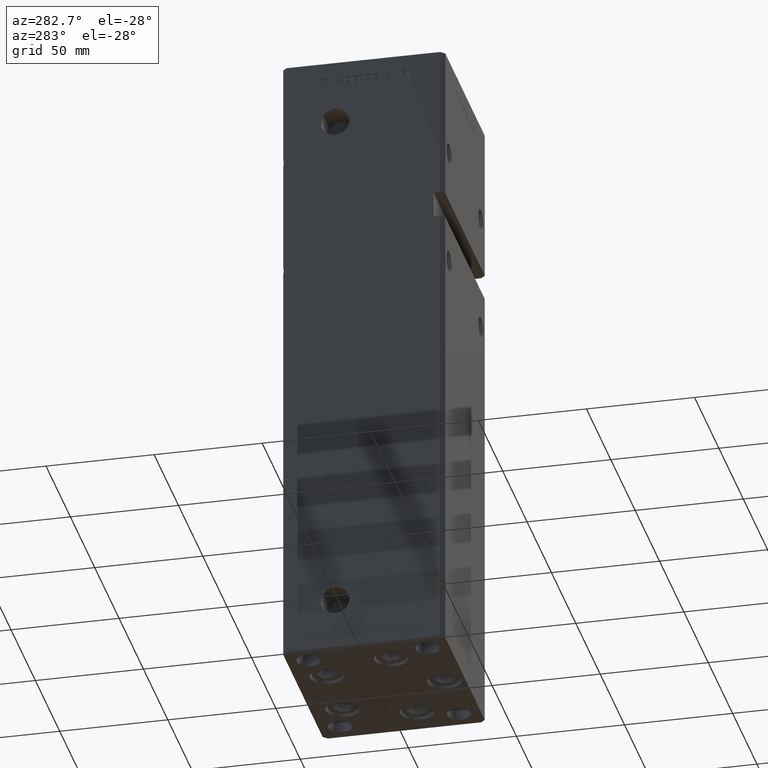
[diagram: clean part render]
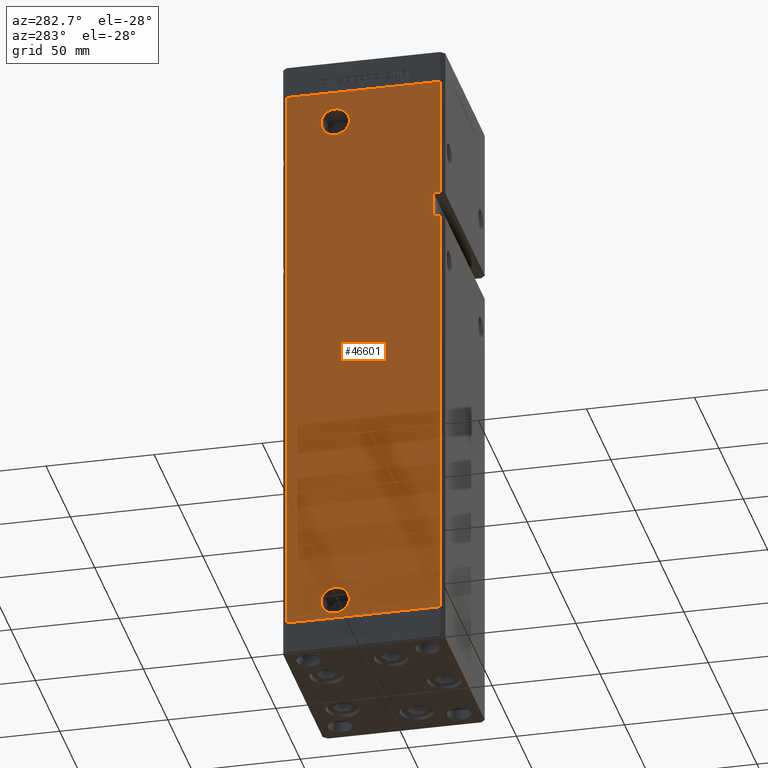
[diagram: same view with one face highlighted and labeled with its STEP entity id]
A machine part, auxiliary view. The second image highlights one B-rep face of the part: STEP entity #46601.
In plain terms, the highlighted planar face has unit normal (1, 0, 0).
Its self-contained STEP definition (entity closure, byte-faithful):
#27 = AXIS2_PLACEMENT_3D ( 'NONE', #28733, #234, #29004 ) ;
#106 = CIRCLE ( 'NONE', #18098, 6.580000000000044480 ) ;
#234 = DIRECTION ( 'NONE',  ( 1.000000000000000000, 3.909236002201255146E-16, -0.000000000000000000 ) ) ;
#550 = VERTEX_POINT ( 'NONE', #43858 ) ;
#669 = ORIENTED_EDGE ( 'NONE', *, *, #43135, .F. ) ;
#1056 = AXIS2_PLACEMENT_3D ( 'NONE', #31562, #23236, #43651 ) ;
#1447 = CIRCLE ( 'NONE', #31503, 6.580000000000002736 ) ;
#1498 = VERTEX_POINT ( 'NONE', #32830 ) ;
#2197 = VERTEX_POINT ( 'NONE', #40637 ) ;
#2217 = EDGE_CURVE ( 'NONE', #35192, #30359, #36617, .T. ) ;
#3323 = VECTOR ( 'NONE', #8765, 1000.000000000000000 ) ;
#4274 = CARTESIAN_POINT ( 'NONE',  ( -42.49999999999998579, -35.50000000000000711, 268.5000000000000000 ) ) ;
#4742 = CARTESIAN_POINT ( 'NONE',  ( -42.49999999999998579, -32.50000000000000711, 200.0000000000000000 ) ) ;
#5217 = VECTOR ( 'NONE', #28695, 1000.000000000000000 ) ;
#5316 = DIRECTION ( 'NONE',  ( -0.000000000000000000, -0.000000000000000000, -1.000000000000000000 ) ) ;
#5411 = EDGE_CURVE ( 'NONE', #11377, #51590, #25384, .T. ) ;
#7112 = CARTESIAN_POINT ( 'NONE',  ( -42.50000000000001421, 35.50000000000000711, 268.5000000000000000 ) ) ;
#8479 = ORIENTED_EDGE ( 'NONE', *, *, #28597, .F. ) ;
#8689 = DIRECTION ( 'NONE',  ( 0.000000000000000000, -1.000000000000000000, 0.000000000000000000 ) ) ;
#8765 = DIRECTION ( 'NONE',  ( -5.782411586589351722E-16, 0.000000000000000000, -1.000000000000000000 ) ) ;
#9078 = FACE_OUTER_BOUND ( 'NONE', #40953, .T. ) ;
#9460 = ORIENTED_EDGE ( 'NONE', *, *, #5411, .F. ) ;
#9769 = ORIENTED_EDGE ( 'NONE', *, *, #17636, .F. ) ;
#10723 = CARTESIAN_POINT ( 'NONE',  ( -42.49999999999998579, -35.50000000000000711, 268.5000000000000000 ) ) ;
#11253 = CARTESIAN_POINT ( 'NONE',  ( -42.49999999999998579, -35.50000000000001421, 212.0000000000000284 ) ) ;
#11377 = VERTEX_POINT ( 'NONE', #7112 ) ;
#12308 = VECTOR ( 'NONE', #30001, 1000.000000000000000 ) ;
#12323 = FACE_BOUND ( 'NONE', #47323, .T. ) ;
#12817 = LINE ( 'NONE', #49103, #3323 ) ;
#15099 = EDGE_CURVE ( 'NONE', #49779, #1498, #47400, .T. ) ;
#15281 = DIRECTION ( 'NONE',  ( 0.000000000000000000, -1.000000000000000000, 0.000000000000000000 ) ) ;
#15615 = EDGE_CURVE ( 'NONE', #11377, #26352, #39164, .T. ) ;
#16699 = VECTOR ( 'NONE', #50353, 1000.000000000000000 ) ;
#16705 = VECTOR ( 'NONE', #53022, 1000.000000000000000 ) ;
#17129 = LINE ( 'NONE', #20387, #5217 ) ;
#17167 = PLANE ( 'NONE',  #27 ) ;
#17636 = EDGE_CURVE ( 'NONE', #550, #2197, #41556, .T. ) ;
#18098 = AXIS2_PLACEMENT_3D ( 'NONE', #43815, #35480, #51881 ) ;
#18963 = CARTESIAN_POINT ( 'NONE',  ( -42.50000000000001421, 35.50000000000000711, 0.000000000000000000 ) ) ;
#20006 = EDGE_LOOP ( 'NONE', ( #44842, #22110 ) ) ;
#20316 = EDGE_CURVE ( 'NONE', #51590, #30359, #34862, .T. ) ;
#20387 = CARTESIAN_POINT ( 'NONE',  ( -42.50000000000001421, 35.50000000000000711, 0.000000000000000000 ) ) ;
#20541 = VERTEX_POINT ( 'NONE', #51721 ) ;
#21442 = EDGE_CURVE ( 'NONE', #24968, #20541, #35599, .T. ) ;
#22110 = ORIENTED_EDGE ( 'NONE', *, *, #43777, .F. ) ;
#23236 = DIRECTION ( 'NONE',  ( -1.000000000000000000, -2.275047181608927644E-16, 0.000000000000000000 ) ) ;
#24099 = VERTEX_POINT ( 'NONE', #51082 ) ;
#24962 = ORIENTED_EDGE ( 'NONE', *, *, #20316, .F. ) ;
#24968 = VERTEX_POINT ( 'NONE', #51757 ) ;
#25246 = VECTOR ( 'NONE', #52068, 1000.000000000000000 ) ;
#25384 = LINE ( 'NONE', #33953, #16699 ) ;
#26352 = VERTEX_POINT ( 'NONE', #18963 ) ;
#27339 = ORIENTED_EDGE ( 'NONE', *, *, #15615, .T. ) ;
#27668 = CARTESIAN_POINT ( 'NONE',  ( -42.50000000000000000, 6.419999999999991935, 9.000000000000007105 ) ) ;
#27904 = AXIS2_PLACEMENT_3D ( 'NONE', #32097, #44734, #8689 ) ;
#28597 = EDGE_CURVE ( 'NONE', #1498, #49779, #1447, .T. ) ;
#28695 = DIRECTION ( 'NONE',  ( 3.909236002201255146E-16, -1.000000000000000000, 0.000000000000000000 ) ) ;
#28733 = CARTESIAN_POINT ( 'NONE',  ( -42.50000000000001421, 35.50000000000000711, 268.5000000000000000 ) ) ;
#29004 = DIRECTION ( 'NONE',  ( -3.909236002201255146E-16, 1.000000000000000000, 0.000000000000000000 ) ) ;
#30001 = DIRECTION ( 'NONE',  ( -0.000000000000000000, -1.000000000000000000, -0.000000000000000000 ) ) ;
#30034 = ORIENTED_EDGE ( 'NONE', *, *, #15099, .F. ) ;
#30359 = VERTEX_POINT ( 'NONE', #11253 ) ;
#30799 = CARTESIAN_POINT ( 'NONE',  ( -42.49999999999998579, -32.50000000000000711, 212.0000000000000284 ) ) ;
#31503 = AXIS2_PLACEMENT_3D ( 'NONE', #40506, #52882, #15281 ) ;
#31562 = CARTESIAN_POINT ( 'NONE',  ( -42.50000000000000000, 12.99999999999999467, 9.000000000000007105 ) ) ;
#32097 = CARTESIAN_POINT ( 'NONE',  ( -42.50000000000000000, 12.99999999999999467, 253.5000000000000000 ) ) ;
#32830 = CARTESIAN_POINT ( 'NONE',  ( -42.50000000000000000, 19.57999999999999829, 9.000000000000007105 ) ) ;
#33953 = CARTESIAN_POINT ( 'NONE',  ( -42.50000000000001421, 35.50000000000000711, 268.5000000000000000 ) ) ;
#34862 = LINE ( 'NONE', #39170, #25246 ) ;
#35192 = VERTEX_POINT ( 'NONE', #30799 ) ;
#35480 = DIRECTION ( 'NONE',  ( -1.000000000000000000, -2.275047181608927644E-16, 0.000000000000000000 ) ) ;
#35599 = CIRCLE ( 'NONE', #27904, 6.580000000000044480 ) ;
#35861 = ORIENTED_EDGE ( 'NONE', *, *, #37361, .F. ) ;
#36617 = LINE ( 'NONE', #40131, #16705 ) ;
#37361 = EDGE_CURVE ( 'NONE', #35192, #550, #12817, .T. ) ;
#39164 = LINE ( 'NONE', #39696, #40547 ) ;
#39170 = CARTESIAN_POINT ( 'NONE',  ( -42.49999999999998579, -35.50000000000000711, 268.5000000000000000 ) ) ;
#39696 = CARTESIAN_POINT ( 'NONE',  ( -42.50000000000001421, 35.50000000000000711, 268.5000000000000000 ) ) ;
#40131 = CARTESIAN_POINT ( 'NONE',  ( -42.49999999999998579, -32.50000000000000711, 212.0000000000000284 ) ) ;
#40506 = CARTESIAN_POINT ( 'NONE',  ( -42.50000000000000000, 12.99999999999999467, 9.000000000000007105 ) ) ;
#40547 = VECTOR ( 'NONE', #44249, 1000.000000000000000 ) ;
#40637 = CARTESIAN_POINT ( 'NONE',  ( -42.49999999999998579, -35.49999999999996447, 200.0000000000000000 ) ) ;
#40953 = EDGE_LOOP ( 'NONE', ( #669, #9769, #35861, #42971, #24962, #9460, #27339, #43995 ) ) ;
#41556 = LINE ( 'NONE', #4742, #12308 ) ;
#42971 = ORIENTED_EDGE ( 'NONE', *, *, #2217, .T. ) ;
#43135 = EDGE_CURVE ( 'NONE', #2197, #24099, #45639, .T. ) ;
#43651 = DIRECTION ( 'NONE',  ( 0.000000000000000000, -1.000000000000000000, 0.000000000000000000 ) ) ;
#43777 = EDGE_CURVE ( 'NONE', #20541, #24968, #106, .T. ) ;
#43815 = CARTESIAN_POINT ( 'NONE',  ( -42.50000000000000000, 12.99999999999999467, 253.5000000000000000 ) ) ;
#43858 = CARTESIAN_POINT ( 'NONE',  ( -42.49999999999998579, -32.50000000000000711, 200.0000000000000000 ) ) ;
#43995 = ORIENTED_EDGE ( 'NONE', *, *, #47885, .T. ) ;
#44249 = DIRECTION ( 'NONE',  ( -0.000000000000000000, -0.000000000000000000, -1.000000000000000000 ) ) ;
#44734 = DIRECTION ( 'NONE',  ( -1.000000000000000000, -2.275047181608927644E-16, 0.000000000000000000 ) ) ;
#44842 = ORIENTED_EDGE ( 'NONE', *, *, #21442, .F. ) ;
#45629 = FACE_BOUND ( 'NONE', #20006, .T. ) ;
#45639 = LINE ( 'NONE', #4274, #48134 ) ;
#46601 = ADVANCED_FACE ( 'NONE', ( #9078, #12323, #45629 ), #17167, .F. ) ;
#47323 = EDGE_LOOP ( 'NONE', ( #30034, #8479 ) ) ;
#47400 = CIRCLE ( 'NONE', #1056, 6.580000000000002736 ) ;
#47885 = EDGE_CURVE ( 'NONE', #26352, #24099, #17129, .T. ) ;
#48134 = VECTOR ( 'NONE', #5316, 1000.000000000000000 ) ;
#49103 = CARTESIAN_POINT ( 'NONE',  ( -42.49999999999998579, -32.50000000000000711, 212.0000000000000284 ) ) ;
#49779 = VERTEX_POINT ( 'NONE', #27668 ) ;
#50353 = DIRECTION ( 'NONE',  ( 3.909236002201255146E-16, -1.000000000000000000, 0.000000000000000000 ) ) ;
#51082 = CARTESIAN_POINT ( 'NONE',  ( -42.49999999999998579, -35.50000000000000711, 0.000000000000000000 ) ) ;
#51590 = VERTEX_POINT ( 'NONE', #10723 ) ;
#51721 = CARTESIAN_POINT ( 'NONE',  ( -42.50000000000000000, 19.58000000000003737, 253.5000000000000000 ) ) ;
#51757 = CARTESIAN_POINT ( 'NONE',  ( -42.50000000000000000, 6.419999999999950191, 253.5000000000000000 ) ) ;
#51881 = DIRECTION ( 'NONE',  ( 0.000000000000000000, -1.000000000000000000, 0.000000000000000000 ) ) ;
#52068 = DIRECTION ( 'NONE',  ( -0.000000000000000000, -0.000000000000000000, -1.000000000000000000 ) ) ;
#52882 = DIRECTION ( 'NONE',  ( -1.000000000000000000, -2.275047181608927644E-16, 0.000000000000000000 ) ) ;
#53022 = DIRECTION ( 'NONE',  ( -0.000000000000000000, -1.000000000000000000, -0.000000000000000000 ) ) ;